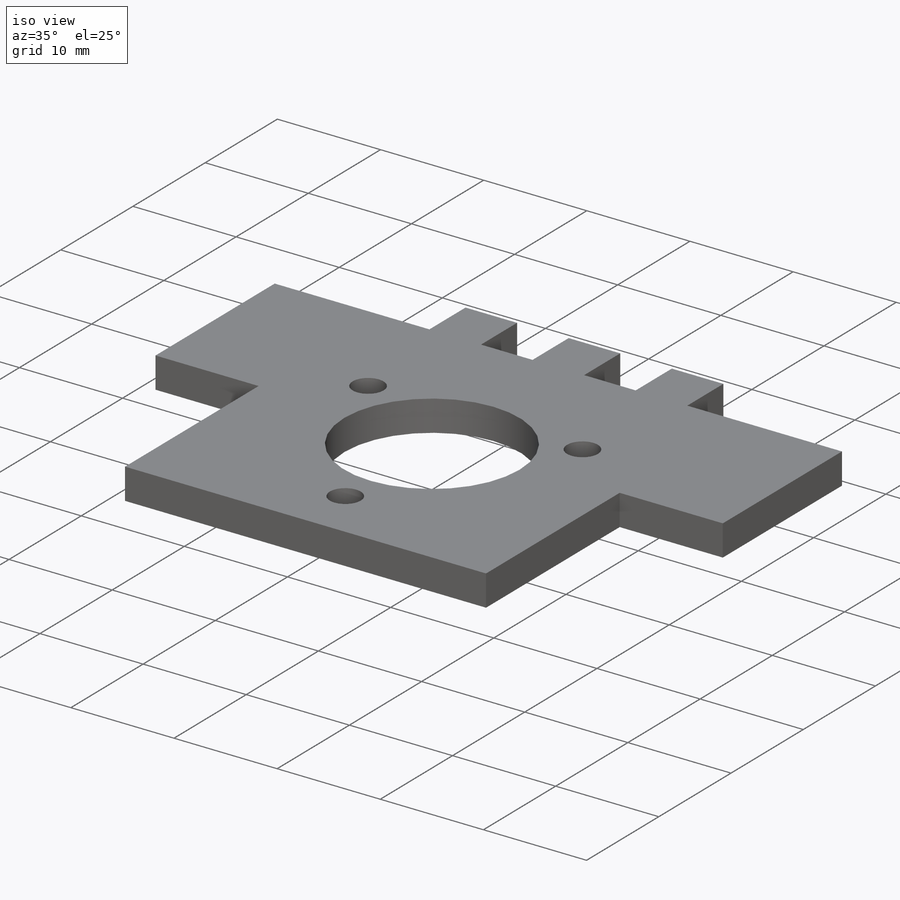
[diagram: iso view]
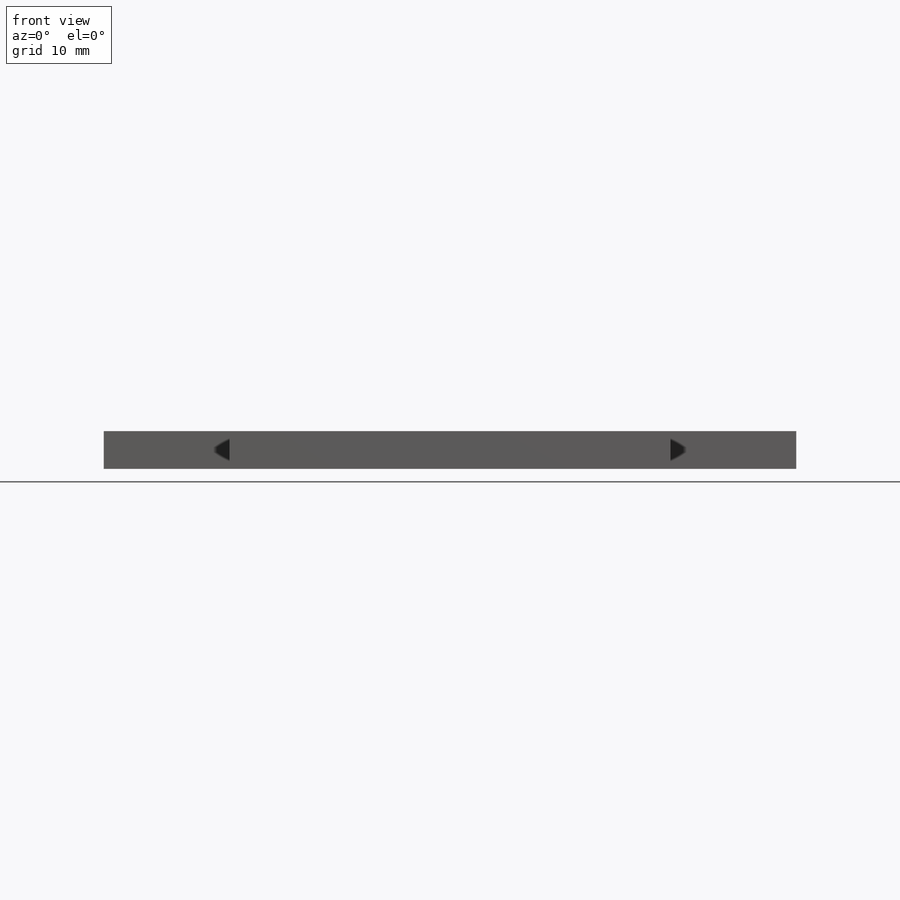
[diagram: front view]
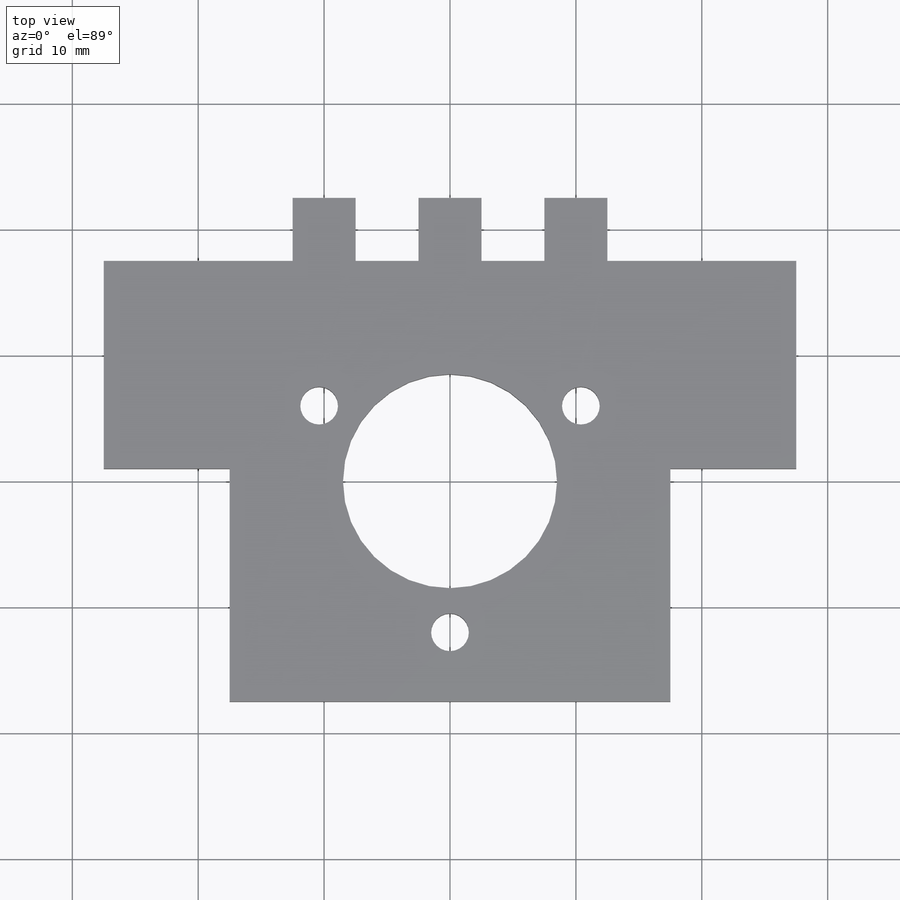
[diagram: top view]
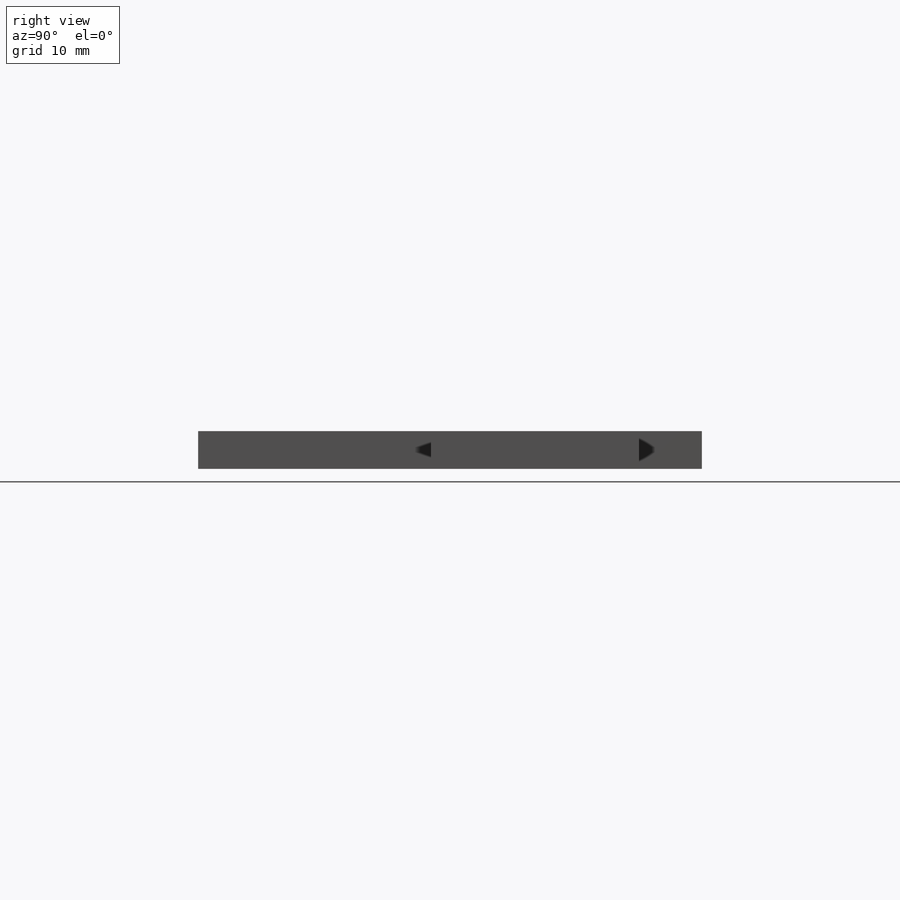
[diagram: right view]
SOLIDWORKS PART (.sldprt)
format: sldprt  version: not decoded by parser v0  size: 458,240 bytes
history: native  units: mm
features: sketch x4, plane x3, extrude x3, material x1, pattern_linear x1, cut_extrude x1, mirror x1 (+10 scaffold rows collapsed)
feature tree (24):
  scaffold x10  (default folders/planes/origin — collapsed)
  material  "Balsa"
  plane  "Plan de face"
  plane  "Plan de dessus"
  plane  "Plan de droite"
  sketch  "Esquisse1"  dims[c1.D3=30.0mm c1.D1=35.0mm c1.D2=35.0mm c1.D4=17.0mm c1.D5=~17.723554mm c2.D4=17.5mm c2.D5=17.5mm c2.D3=17.5mm c3.D4=17.5mm]
  extrude  "Boss.-Extru.1"  Depth=3mm
  sketch  "Esquisse2"  dims[c1.D1=5.0mm c1.D2=5.0mm c1.D3=5.0mm c2.D2=5.0mm c2.D1=5.0mm c3.D2=5.0mm c3.D3=5.0mm]
  extrude  "Boss.-Extru.2"  Depth=3mm
  pattern_linear  "Répétition linéaire1"  Count1=3 Count2=1 Spacing1=10mm Spacing2=40mm
  sketch  "Esquisse3"  dims[D1=17.0mm D2=3.0mm D3=12.0mm D5=0.0mm D4=3.0]
  cut_extrude  "Enlèv. mat.-Extru.1"  Depth=5mm
  sketch  "Esquisse4"  dims[c1.D1=1.0mm c1.D2=10.0mm c1.D3=10.0mm c2.D2=16.5mm]
  extrude  "Boss.-Extru.3"  [1 undecoded]
  mirror  "Symétrie1"
decode coverage: 8 of 10 modeling features carry decoded parameters
note: ~ marks probable driven/reference dimensions
note: 1 parameter value undecoded
note: suppression state not decoded; provenance and decode notes live in map.json
